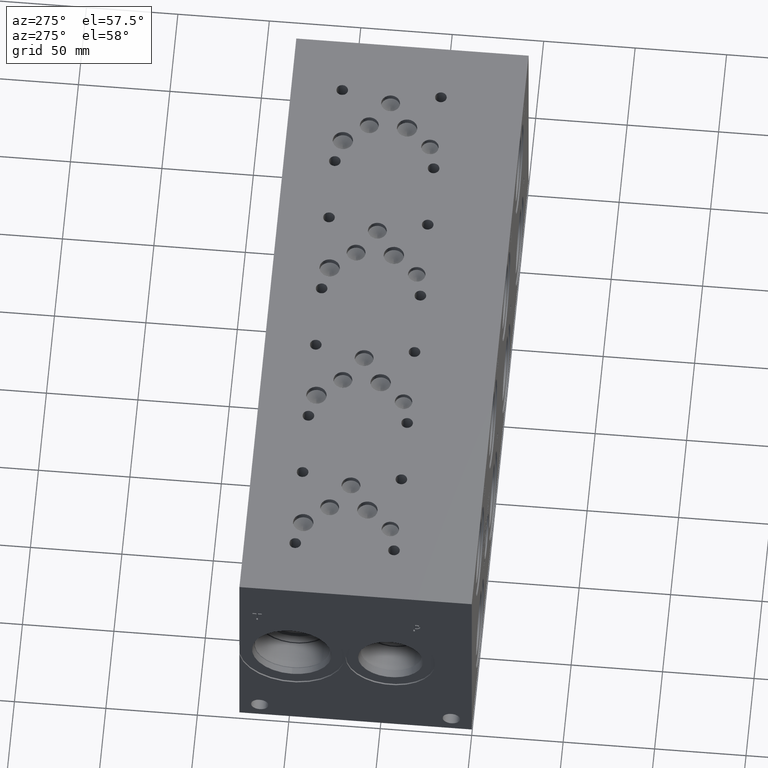
[diagram: clean part render]
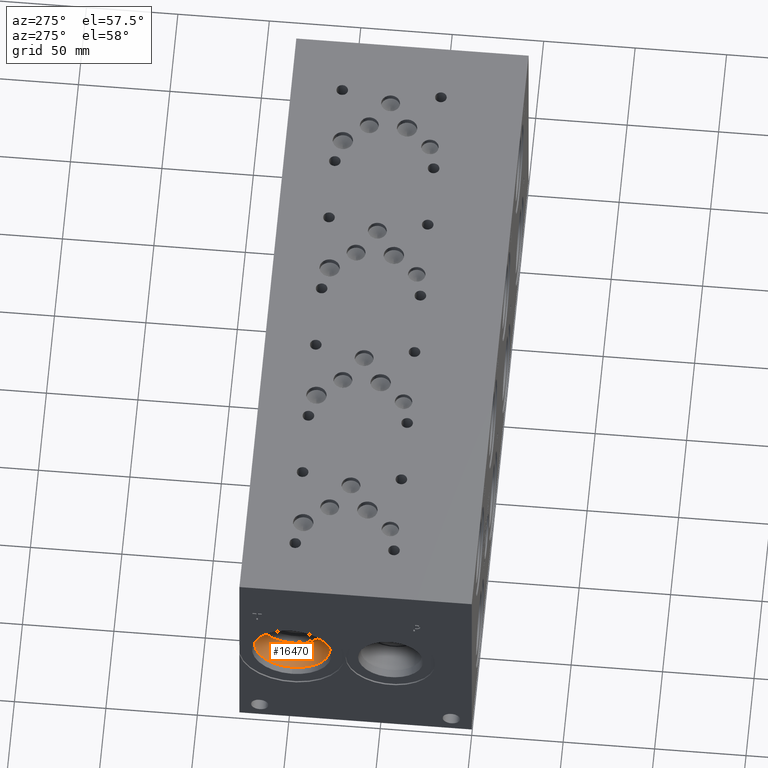
[diagram: same view with one face highlighted and labeled with its STEP entity id]
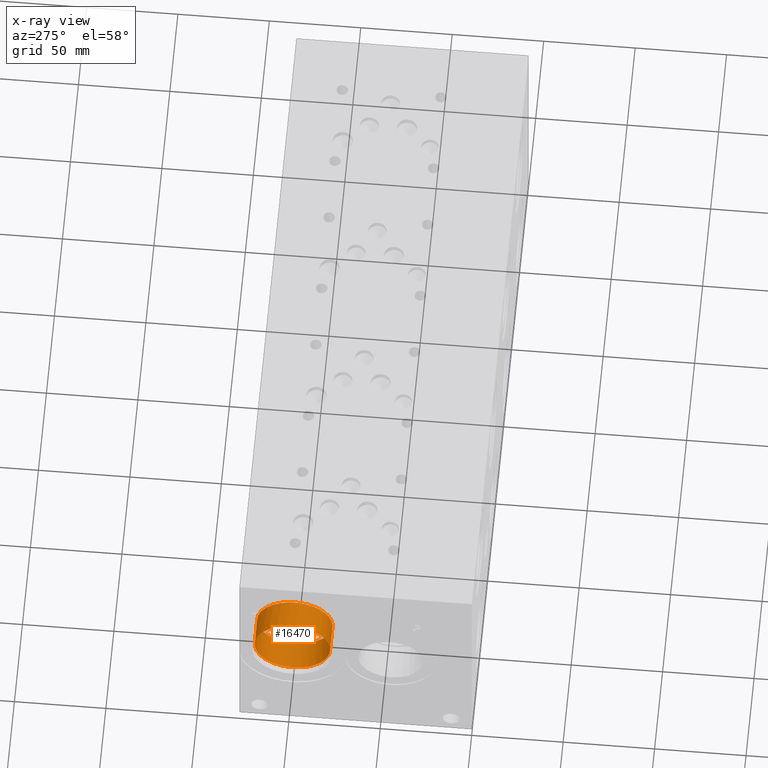
[diagram: x-ray of the same camera — body ghosted, the highlighted face saturated]
A machine part, auxiliary view. The second image highlights one B-rep face of the part: STEP entity #16470.
The next image is the same camera in x-ray: the body ghosted, the highlighted face saturated — about 0% of this face is hidden behind the body in this view.
In plain terms, the highlighted cylindrical surface (bore or boss wall) has radius 20.64 mm, axis along (-1, 0, 0).
Its self-contained STEP definition (entity closure, byte-faithful):
#257=CYLINDRICAL_SURFACE('',#17652,20.64);
#939=CIRCLE('',#17649,20.64);
#940=CIRCLE('',#17650,20.64);
#942=CIRCLE('',#17653,20.64);
#943=CIRCLE('',#17654,20.64);
#2338=FACE_OUTER_BOUND('',#3321,.T.);
#3321=EDGE_LOOP('',(#14501,#14502,#14503,#14504,#14505,#14506));
#4772=LINE('',#28599,#6183);
#6183=VECTOR('',#21392,20.64);
#7763=VERTEX_POINT('',#28589);
#7764=VERTEX_POINT('',#28590);
#7766=VERTEX_POINT('',#28596);
#7767=VERTEX_POINT('',#28597);
#10044=EDGE_CURVE('',#7763,#7764,#939,.T.);
#10045=EDGE_CURVE('',#7764,#7763,#940,.T.);
#10047=EDGE_CURVE('',#7766,#7767,#942,.T.);
#10048=EDGE_CURVE('',#7766,#7764,#4772,.T.);
#10049=EDGE_CURVE('',#7767,#7766,#943,.T.);
#14501=ORIENTED_EDGE('',*,*,#10047,.F.);
#14502=ORIENTED_EDGE('',*,*,#10048,.T.);
#14503=ORIENTED_EDGE('',*,*,#10044,.F.);
#14504=ORIENTED_EDGE('',*,*,#10045,.F.);
#14505=ORIENTED_EDGE('',*,*,#10048,.F.);
#14506=ORIENTED_EDGE('',*,*,#10049,.F.);
#16470=ADVANCED_FACE('',(#2338),#257,.F.);
#17649=AXIS2_PLACEMENT_3D('',#28591,#21382,#21383);
#17650=AXIS2_PLACEMENT_3D('',#28592,#21384,#21385);
#17652=AXIS2_PLACEMENT_3D('',#28595,#21388,#21389);
#17653=AXIS2_PLACEMENT_3D('',#28598,#21390,#21391);
#17654=AXIS2_PLACEMENT_3D('',#28600,#21393,#21394);
#21382=DIRECTION('center_axis',(-1.,0.,0.));
#21383=DIRECTION('ref_axis',(0.,1.,0.));
#21384=DIRECTION('center_axis',(-1.,0.,0.));
#21385=DIRECTION('ref_axis',(0.,1.,0.));
#21388=DIRECTION('center_axis',(-1.,0.,0.));
#21389=DIRECTION('ref_axis',(0.,1.,0.));
#21390=DIRECTION('center_axis',(1.,0.,0.));
#21391=DIRECTION('ref_axis',(0.,1.,0.));
#21392=DIRECTION('',(1.,0.,0.));
#21393=DIRECTION('center_axis',(1.,0.,0.));
#21394=DIRECTION('ref_axis',(0.,1.,0.));
#28589=CARTESIAN_POINT('',(19.8374,119.065,63.5));
#28590=CARTESIAN_POINT('',(19.8374,77.785,63.5));
#28591=CARTESIAN_POINT('Origin',(19.8374,98.425,63.5));
#28592=CARTESIAN_POINT('Origin',(19.8374,98.425,63.5));
#28595=CARTESIAN_POINT('Origin',(9.9187,98.425,63.5));
#28596=CARTESIAN_POINT('',(4.30279999999999,77.785,63.5));
#28597=CARTESIAN_POINT('',(4.30279999999999,98.425,42.86));
#28598=CARTESIAN_POINT('Origin',(4.30279999999999,98.425,63.5));
#28599=CARTESIAN_POINT('',(9.9187,77.785,63.5));
#28600=CARTESIAN_POINT('Origin',(4.30279999999999,98.425,63.5));